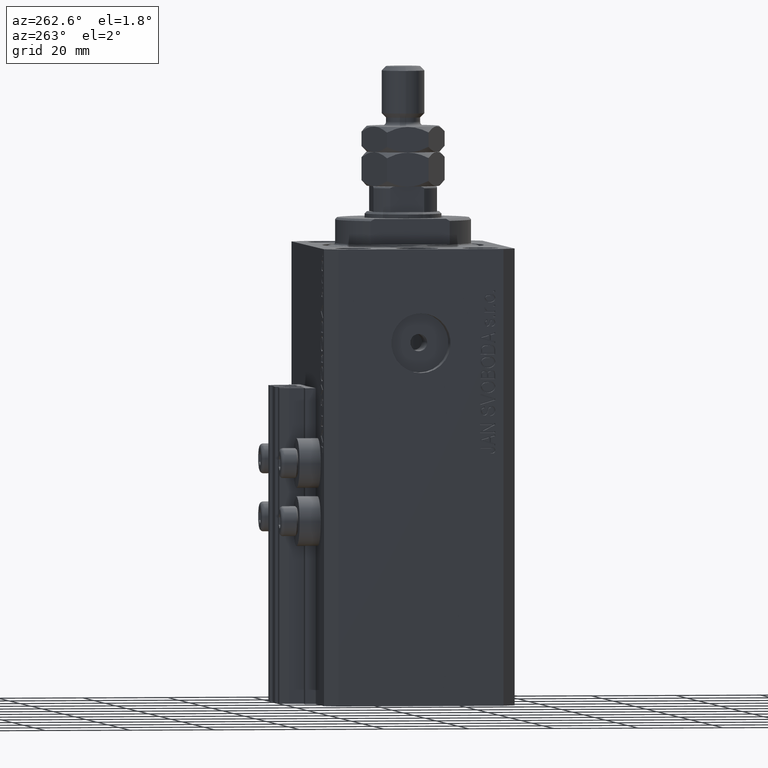
[diagram: clean part render]
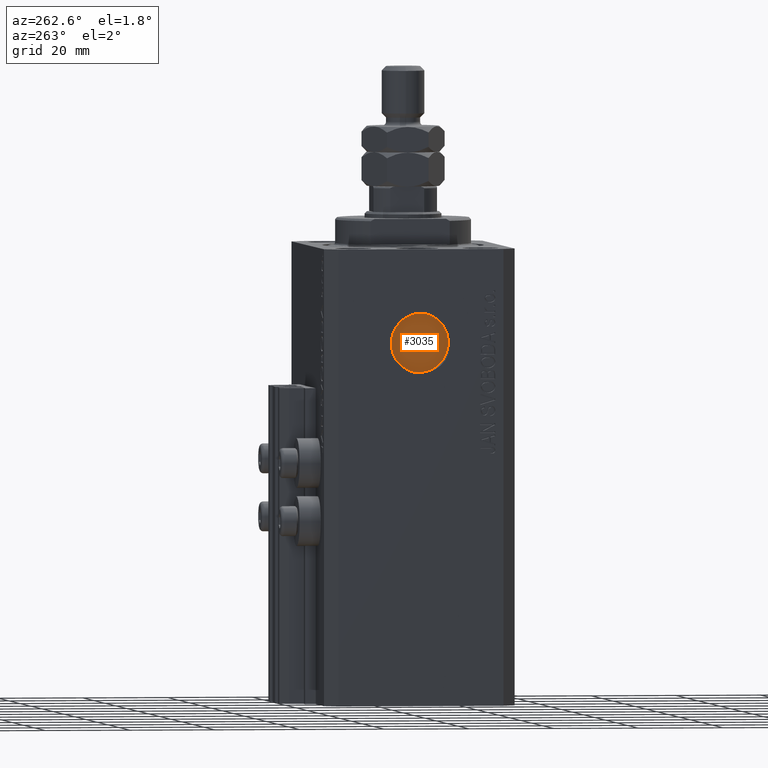
[diagram: same view with one face highlighted and labeled with its STEP entity id]
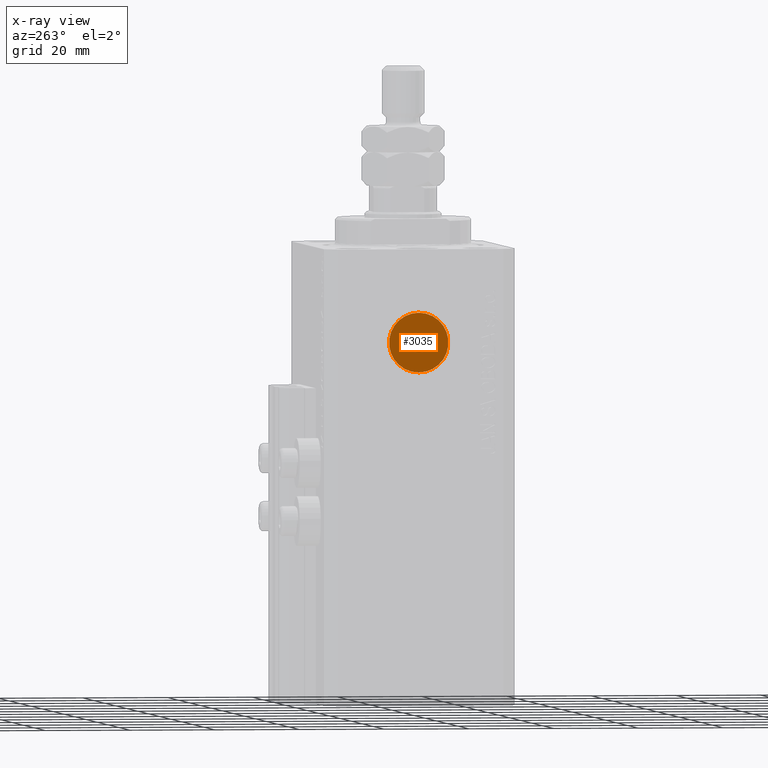
[diagram: x-ray of the same camera — body ghosted, the highlighted face saturated]
A machine part, auxiliary view. The second image highlights one B-rep face of the part: STEP entity #3035.
The next image is the same camera in x-ray: the body ghosted, the highlighted face saturated — about 0% of this face is hidden behind the body in this view.
In plain terms, the highlighted planar face has unit normal (-1, 0, 0).
Its self-contained STEP definition (entity closure, byte-faithful):
#3035 = ADVANCED_FACE ( 'NONE', ( #14663, #7280 ), #33900, .T. ) ;
#3435 = CARTESIAN_POINT ( 'NONE',  ( -28.49999999999650413, 0.000000000000000000, -22.00000000000000000 ) ) ;
#5238 = DIRECTION ( 'NONE',  ( -1.000000000000000000, 0.000000000000000000, 0.000000000000000000 ) ) ;
#7280 = FACE_OUTER_BOUND ( 'NONE', #24447, .T. ) ;
#7514 = DIRECTION ( 'NONE',  ( 0.000000000000000000, 0.000000000000000000, 1.000000000000000000 ) ) ;
#7518 = CIRCLE ( 'NONE', #46107, 6.999999999999999112 ) ;
#10740 = CARTESIAN_POINT ( 'NONE',  ( -28.49999999999650413, 0.000000000000000000, -22.00000000000000000 ) ) ;
#11060 = DIRECTION ( 'NONE',  ( -1.000000000000000000, 0.000000000000000000, 0.000000000000000000 ) ) ;
#12296 = AXIS2_PLACEMENT_3D ( 'NONE', #3435, #15924, #48087 ) ;
#13764 = DIRECTION ( 'NONE',  ( 0.000000000000000000, 0.000000000000000000, 1.000000000000000000 ) ) ;
#14663 = FACE_BOUND ( 'NONE', #34582, .T. ) ;
#15433 = EDGE_CURVE ( 'NONE', #41763, #34245, #20464, .T. ) ;
#15712 = DIRECTION ( 'NONE',  ( 0.000000000000000000, 0.000000000000000000, 1.000000000000000000 ) ) ;
#15924 = DIRECTION ( 'NONE',  ( -1.000000000000000000, 0.000000000000000000, 0.000000000000000000 ) ) ;
#20464 = CIRCLE ( 'NONE', #29155, 1.999999999999998224 ) ;
#22987 = CARTESIAN_POINT ( 'NONE',  ( -28.49999999999650413, 8.572527594031474176E-16, -28.99999999999999645 ) ) ;
#23264 = DIRECTION ( 'NONE',  ( 0.000000000000000000, 0.000000000000000000, 1.000000000000000000 ) ) ;
#23378 = VERTEX_POINT ( 'NONE', #32988 ) ;
#24342 = VERTEX_POINT ( 'NONE', #22987 ) ;
#24447 = EDGE_LOOP ( 'NONE', ( #24699, #36518 ) ) ;
#24699 = ORIENTED_EDGE ( 'NONE', *, *, #36272, .T. ) ;
#26721 = ORIENTED_EDGE ( 'NONE', *, *, #15433, .F. ) ;
#29155 = AXIS2_PLACEMENT_3D ( 'NONE', #46295, #42828, #15712 ) ;
#32512 = CARTESIAN_POINT ( 'NONE',  ( -28.49999999999650413, 2.449293598294706414E-16, -23.99999999999999645 ) ) ;
#32988 = CARTESIAN_POINT ( 'NONE',  ( -28.49999999999650413, 0.000000000000000000, -15.00000000000000000 ) ) ;
#33900 = PLANE ( 'NONE',  #34318 ) ;
#34245 = VERTEX_POINT ( 'NONE', #44341 ) ;
#34318 = AXIS2_PLACEMENT_3D ( 'NONE', #10740, #41535, #7514 ) ;
#34582 = EDGE_LOOP ( 'NONE', ( #43578, #26721 ) ) ;
#36272 = EDGE_CURVE ( 'NONE', #23378, #24342, #7518, .T. ) ;
#36518 = ORIENTED_EDGE ( 'NONE', *, *, #41892, .T. ) ;
#37444 = CARTESIAN_POINT ( 'NONE',  ( -28.49999999999650413, 0.000000000000000000, -22.00000000000000000 ) ) ;
#37774 = EDGE_CURVE ( 'NONE', #34245, #41763, #48541, .T. ) ;
#41535 = DIRECTION ( 'NONE',  ( -1.000000000000000000, 0.000000000000000000, 0.000000000000000000 ) ) ;
#41763 = VERTEX_POINT ( 'NONE', #32512 ) ;
#41892 = EDGE_CURVE ( 'NONE', #24342, #23378, #43916, .T. ) ;
#42337 = AXIS2_PLACEMENT_3D ( 'NONE', #37444, #11060, #13764 ) ;
#42828 = DIRECTION ( 'NONE',  ( -1.000000000000000000, 0.000000000000000000, 0.000000000000000000 ) ) ;
#43578 = ORIENTED_EDGE ( 'NONE', *, *, #37774, .F. ) ;
#43916 = CIRCLE ( 'NONE', #42337, 6.999999999999999112 ) ;
#44341 = CARTESIAN_POINT ( 'NONE',  ( -28.49999999999650413, 0.000000000000000000, -20.00000000000000000 ) ) ;
#46107 = AXIS2_PLACEMENT_3D ( 'NONE', #46189, #5238, #23264 ) ;
#46189 = CARTESIAN_POINT ( 'NONE',  ( -28.49999999999650413, 0.000000000000000000, -22.00000000000000000 ) ) ;
#46295 = CARTESIAN_POINT ( 'NONE',  ( -28.49999999999650413, 0.000000000000000000, -22.00000000000000000 ) ) ;
#48087 = DIRECTION ( 'NONE',  ( 0.000000000000000000, 0.000000000000000000, 1.000000000000000000 ) ) ;
#48541 = CIRCLE ( 'NONE', #12296, 1.999999999999998224 ) ;